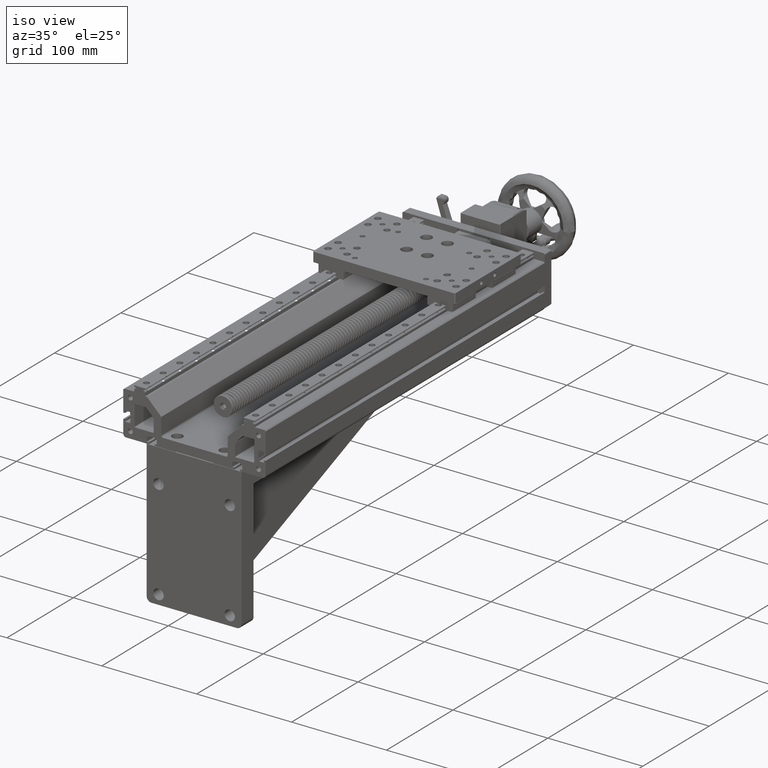
[diagram: clean part render]
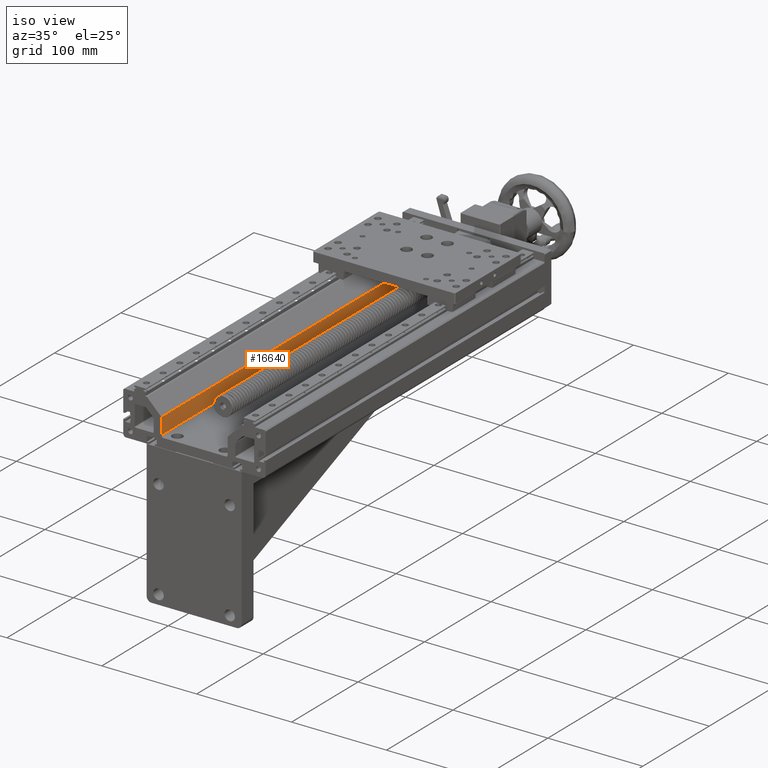
[diagram: same view with one face highlighted and labeled with its STEP entity id]
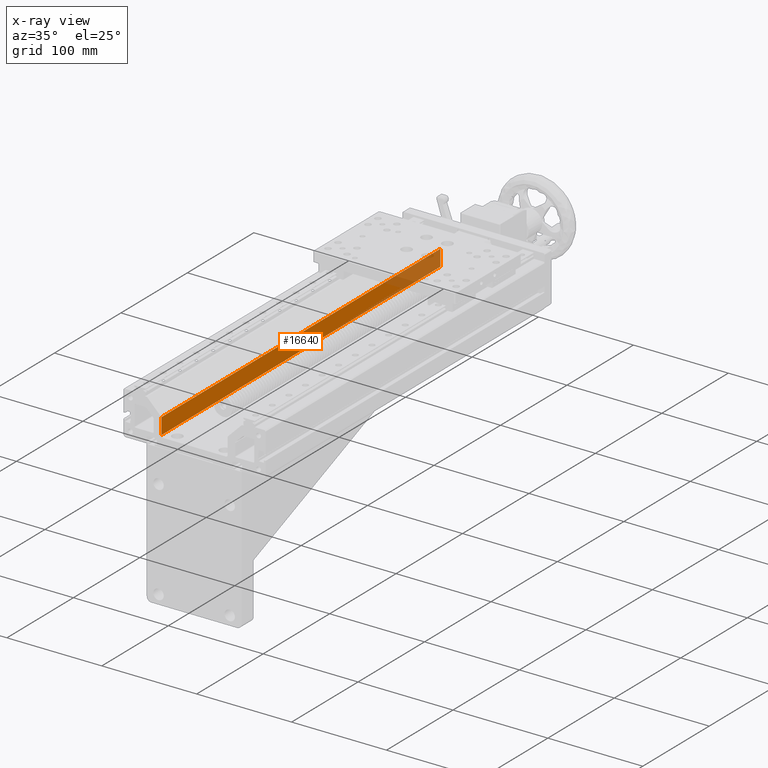
[diagram: x-ray of the same camera — body ghosted, the highlighted face saturated]
A machine part, iso view. The second image highlights one B-rep face of the part: STEP entity #16640.
The next image is the same camera in x-ray: the body ghosted, the highlighted face saturated — about 19% of this face is hidden behind the body in this view.
In plain terms, the highlighted planar face has unit normal (1, 0, -0).
Its self-contained STEP definition (entity closure, byte-faithful):
#1186 = LINE ( 'NONE', #24153, #36469 ) ;
#1642 = CARTESIAN_POINT ( 'NONE',  ( -117.1853518124607518, 234.0134646088877162, 86.99999999999974420 ) ) ;
#3920 = DIRECTION ( 'NONE',  ( 2.355720492930367857E-16, -1.000000000000000000, 2.223285094848859850E-16 ) ) ;
#4155 = LINE ( 'NONE', #19792, #21065 ) ;
#5377 = ORIENTED_EDGE ( 'NONE', *, *, #25544, .T. ) ;
#7164 = VERTEX_POINT ( 'NONE', #1642 ) ;
#10268 = CARTESIAN_POINT ( 'NONE',  ( -117.1853518124600981, 234.0134646088877162, 104.0857864376274478 ) ) ;
#11032 = DIRECTION ( 'NONE',  ( 2.355720492930367857E-16, -1.000000000000000000, 2.223285094848859850E-16 ) ) ;
#11536 = VECTOR ( 'NONE', #11032, 1000.000000000000000 ) ;
#16255 = CARTESIAN_POINT ( 'NONE',  ( -117.1853518124599844, -185.9865353911120849, 104.0857864376274478 ) ) ;
#16640 = ADVANCED_FACE ( 'NONE', ( #31774 ), #31519, .T. ) ;
#17566 = EDGE_CURVE ( 'NONE', #7164, #37702, #46470, .T. ) ;
#19792 = CARTESIAN_POINT ( 'NONE',  ( -117.1853518124607518, 234.0134646088877162, 86.99999999999974420 ) ) ;
#20355 = DIRECTION ( 'NONE',  ( 3.628741573400303272E-14, 2.223285094848944653E-16, 1.000000000000000000 ) ) ;
#20427 = CARTESIAN_POINT ( 'NONE',  ( -117.1853518124601408, 234.0134646088877162, 104.0857864376274478 ) ) ;
#21065 = VECTOR ( 'NONE', #3920, 1000.000000000000000 ) ;
#23082 = DIRECTION ( 'NONE',  ( 3.628741573400303272E-14, 2.223285094848944653E-16, 1.000000000000000000 ) ) ;
#23710 = EDGE_CURVE ( 'NONE', #7164, #24674, #4155, .T. ) ;
#23774 = EDGE_LOOP ( 'NONE', ( #43919, #44165, #39691, #5377 ) ) ;
#24153 = CARTESIAN_POINT ( 'NONE',  ( -117.1853518124600413, -185.9865353911120849, 104.0857864376274478 ) ) ;
#24674 = VERTEX_POINT ( 'NONE', #31738 ) ;
#25544 = EDGE_CURVE ( 'NONE', #37702, #28027, #44768, .T. ) ;
#26963 = VECTOR ( 'NONE', #23082, 1000.000000000000000 ) ;
#28027 = VERTEX_POINT ( 'NONE', #16255 ) ;
#31519 = PLANE ( 'NONE',  #44532 ) ;
#31738 = CARTESIAN_POINT ( 'NONE',  ( -117.1853518124606524, -185.9865353911120849, 86.99999999999974420 ) ) ;
#31774 = FACE_OUTER_BOUND ( 'NONE', #23774, .T. ) ;
#34453 = EDGE_CURVE ( 'NONE', #24674, #28027, #1186, .T. ) ;
#36469 = VECTOR ( 'NONE', #20355, 1000.000000000000000 ) ;
#37702 = VERTEX_POINT ( 'NONE', #43552 ) ;
#39691 = ORIENTED_EDGE ( 'NONE', *, *, #17566, .T. ) ;
#43552 = CARTESIAN_POINT ( 'NONE',  ( -117.1853518124600981, 234.0134646088877162, 104.0857864376274478 ) ) ;
#43919 = ORIENTED_EDGE ( 'NONE', *, *, #34453, .F. ) ;
#44165 = ORIENTED_EDGE ( 'NONE', *, *, #23710, .F. ) ;
#44532 = AXIS2_PLACEMENT_3D ( 'NONE', #20427, #47124, #47364 ) ;
#44768 = LINE ( 'NONE', #10268, #11536 ) ;
#46470 = LINE ( 'NONE', #46699, #26963 ) ;
#46699 = CARTESIAN_POINT ( 'NONE',  ( -117.1853518124601408, 234.0134646088877162, 104.0857864376274478 ) ) ;
#47124 = DIRECTION ( 'NONE',  ( 1.000000000000000000, 2.364394110310205054E-16, -3.628741573400303272E-14 ) ) ;
#47364 = DIRECTION ( 'NONE',  ( 3.628741573400303272E-14, 2.223285094848944653E-16, 1.000000000000000000 ) ) ;